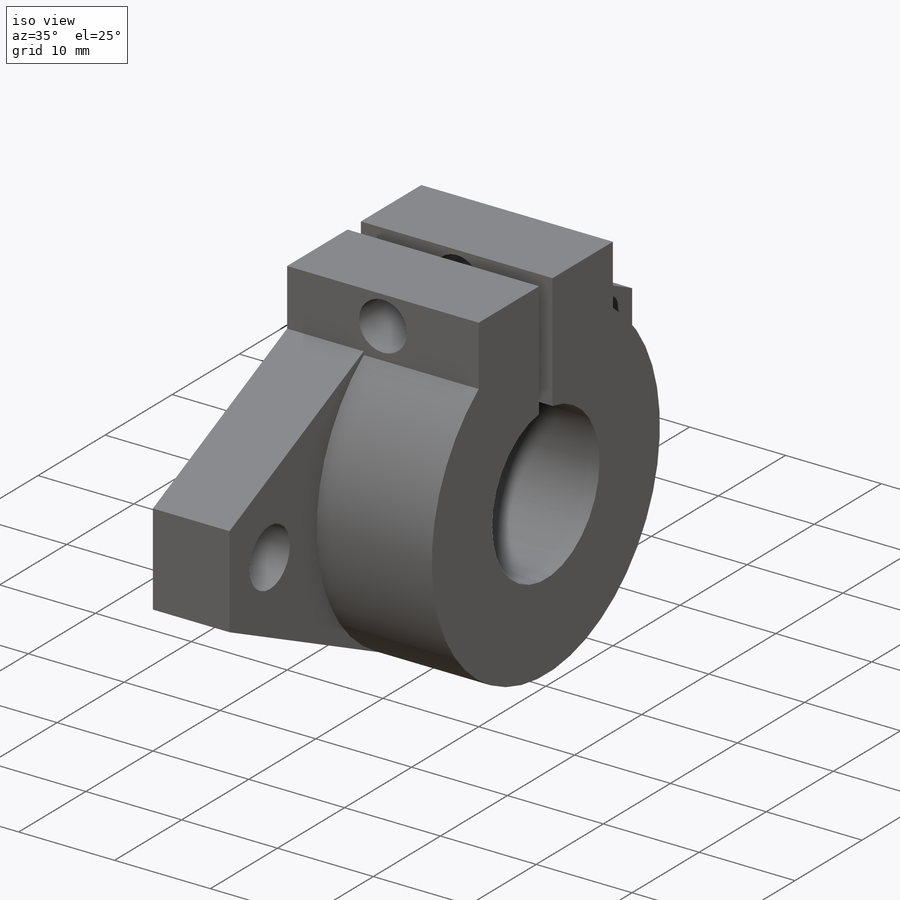
[diagram: iso view]
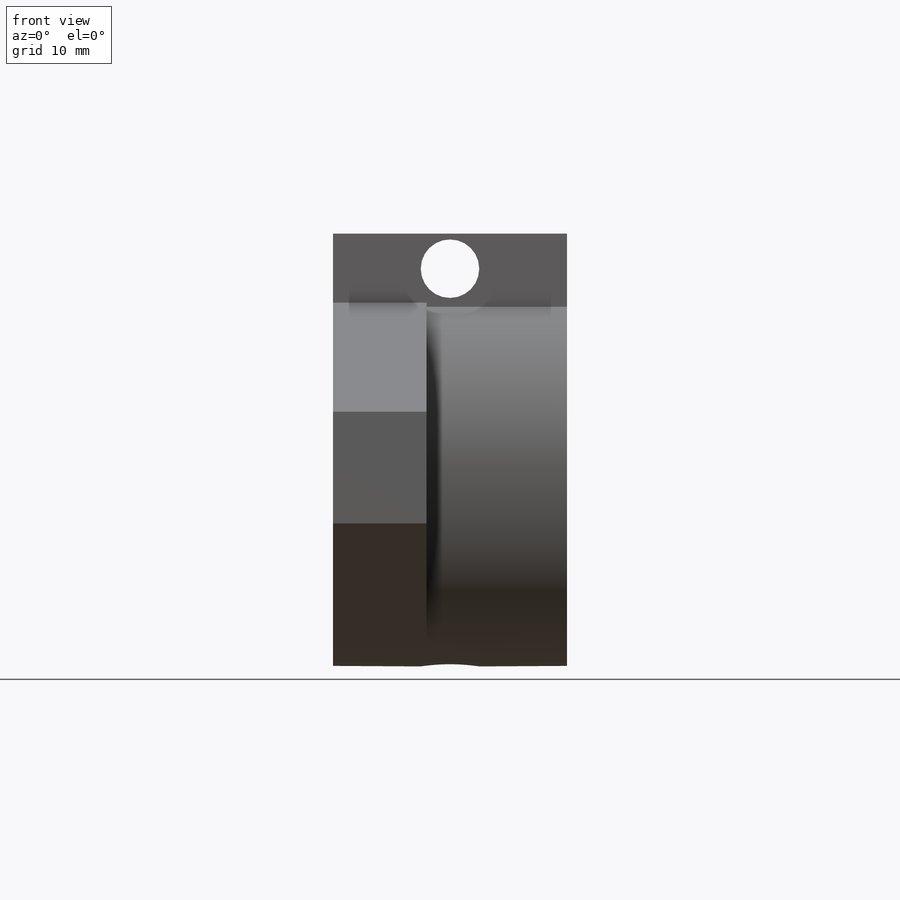
[diagram: front view]
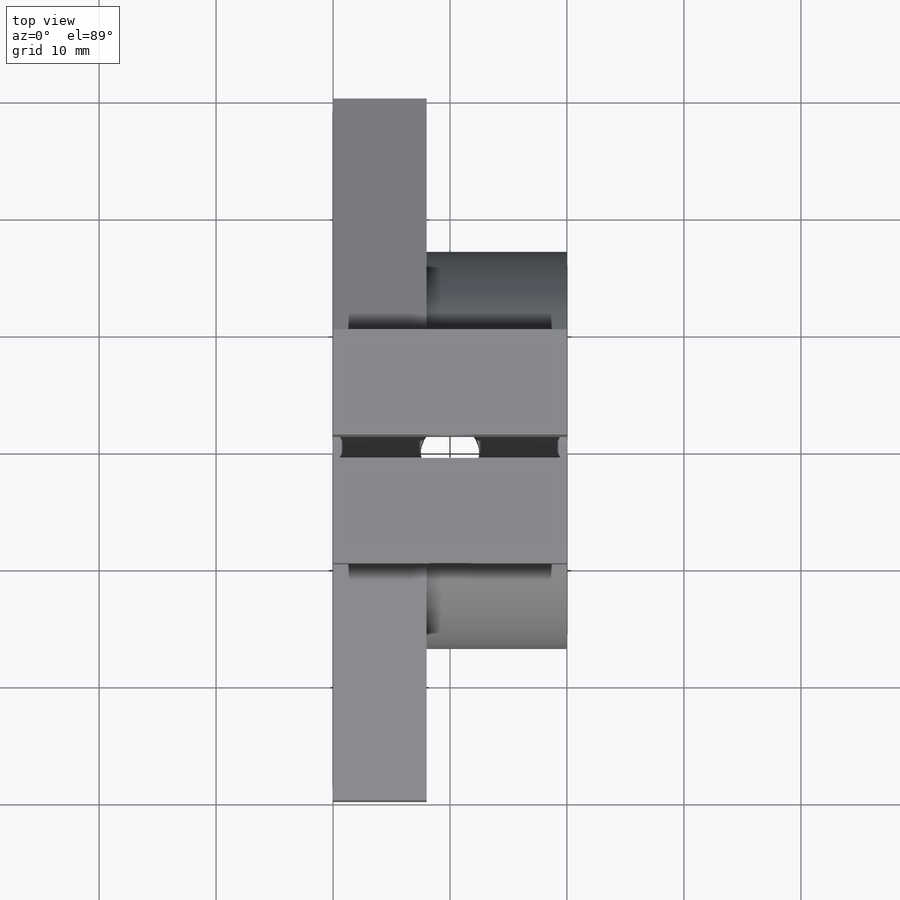
[diagram: top view]
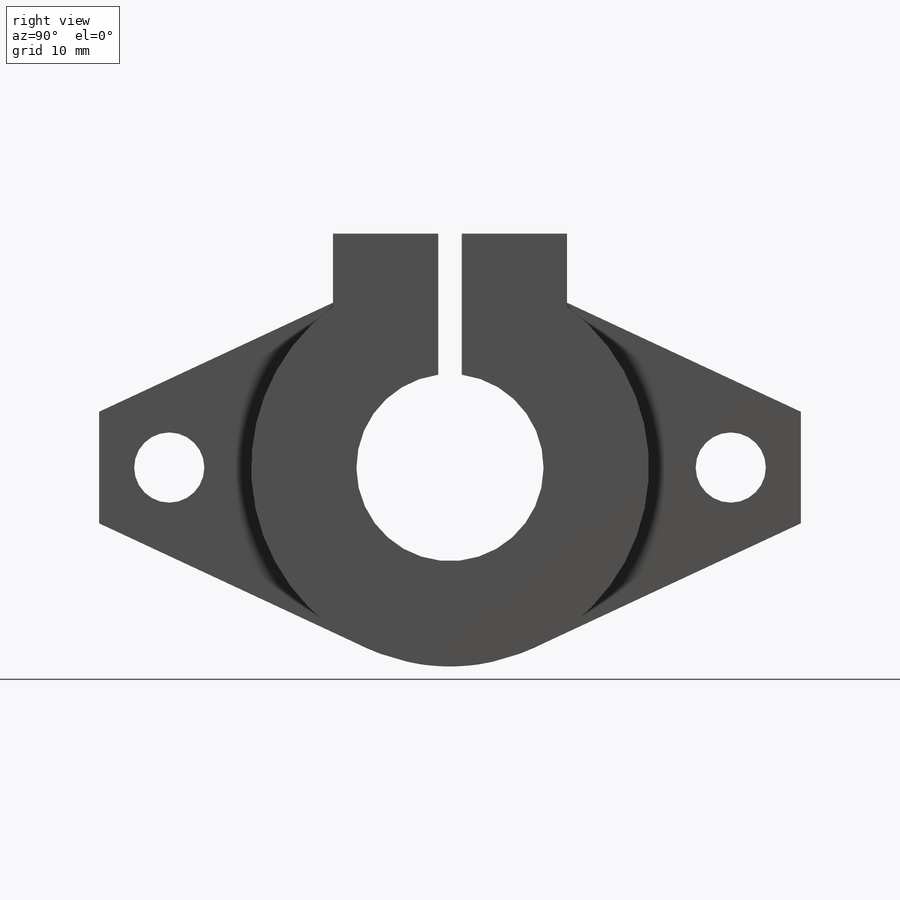
[diagram: right view]
SOLIDWORKS PART (.sldprt)
format: sldprt  version: not decoded by parser v0  size: 295,424 bytes
history: native  units: mm
features: sketch x6, plane x4, extrude x3, cut_extrude x3, material x1 (+10 scaffold rows collapsed)
feature tree (27):
  scaffold x10  (default folders/planes/origin — collapsed)
  material  "6061 合金"
  plane  "前视基准面"
  plane  "上视基准面"
  plane  "右视基准面"
  sketch  "草图1"  dims[c1.D1=16.0mm c1.D2=34.0mm c1.D3=5.0mm c1.D4=6.0mm c2.D3=48.0mm c2.D5=60.0mm c2.D6=~22.217473mm c3.D6=115.0deg]
  extrude  "凸台-拉伸1"  Depth=8mm
  extrude  "凸台-拉伸2"  [1 undecoded]
  sketch  "草图1<3>"  dims[D1=20.0mm]
  plane  "基准面1"  Offset=20mm
  sketch  "草图2"  dims[c1.D1=21.604mm c1.D2=~48.449208mm c2.D1=~17.896805mm c2.D2=20.0mm c3.D1=20.0mm]
  extrude  "凸台-拉伸3"  [1 undecoded]
  sketch  "草图3"  dims[c1.D1=~2.556686mm c1.D2=20.0mm c2.D1=2.0mm]
  cut_extrude  "切除-拉伸1"  Depth=20mm
  sketch  "草图4"  dims[D1=~3.648224mm D2=3.0mm]
  cut_extrude  "切除-拉伸2"  [1 undecoded]
  sketch  "草图5"  dims[D1=5.0mm D2=10.0mm]
  cut_extrude  "切除-拉伸3"  [1 undecoded]
decode coverage: 8 of 12 modeling features carry decoded parameters
note: ~ marks probable driven/reference dimensions
note: 4 parameter values undecoded
summary: no parameter record found for 4 features
note: suppression state not decoded; provenance and decode notes live in map.json
